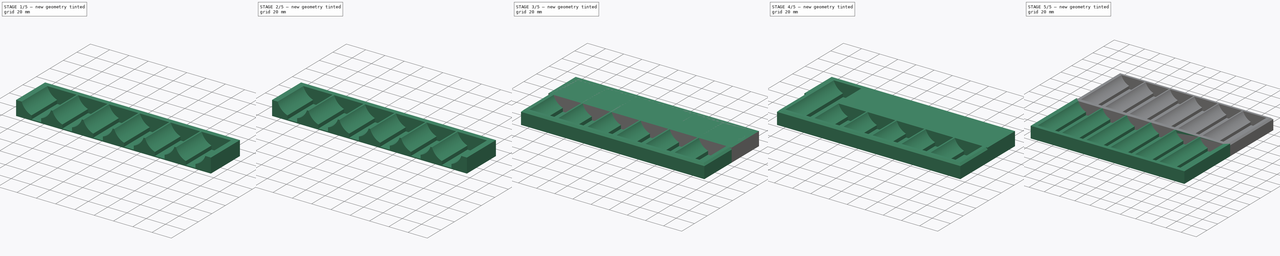
[diagram: build sequence overview — one tinted view per stage of 5, left to right]
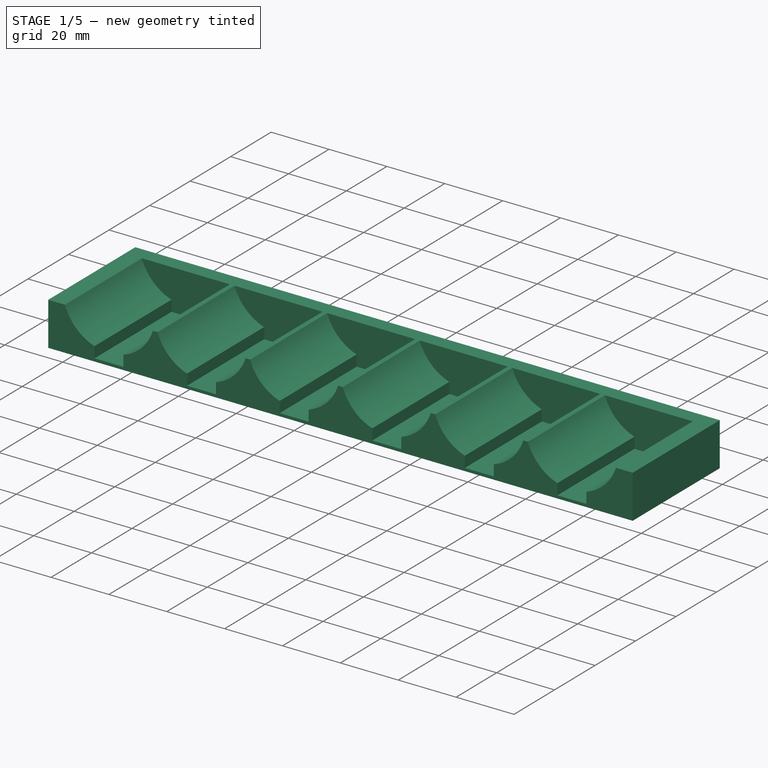
[diagram: stage 1 of 5 — iso view after this stage's code; geometry added in this stage tinted green]
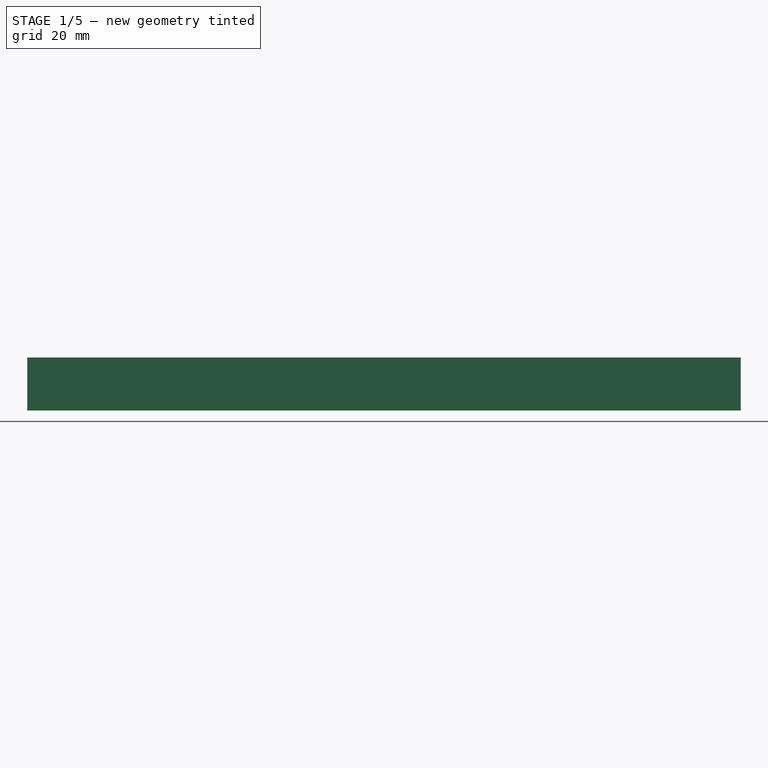
[diagram: stage 1 of 5 — front view after this stage's code; geometry added in this stage tinted green]
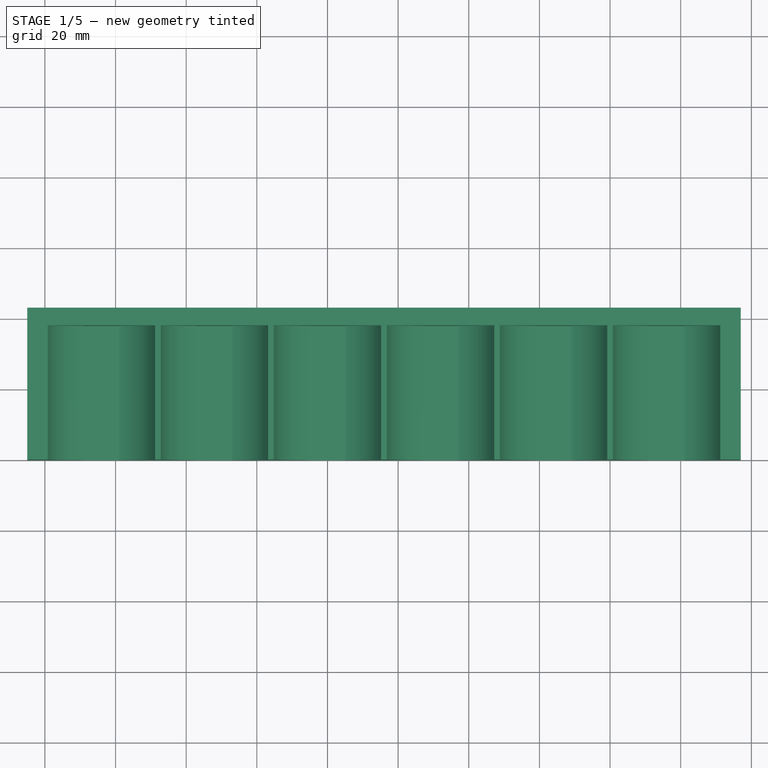
[diagram: stage 1 of 5 — top view after this stage's code; geometry added in this stage tinted green]
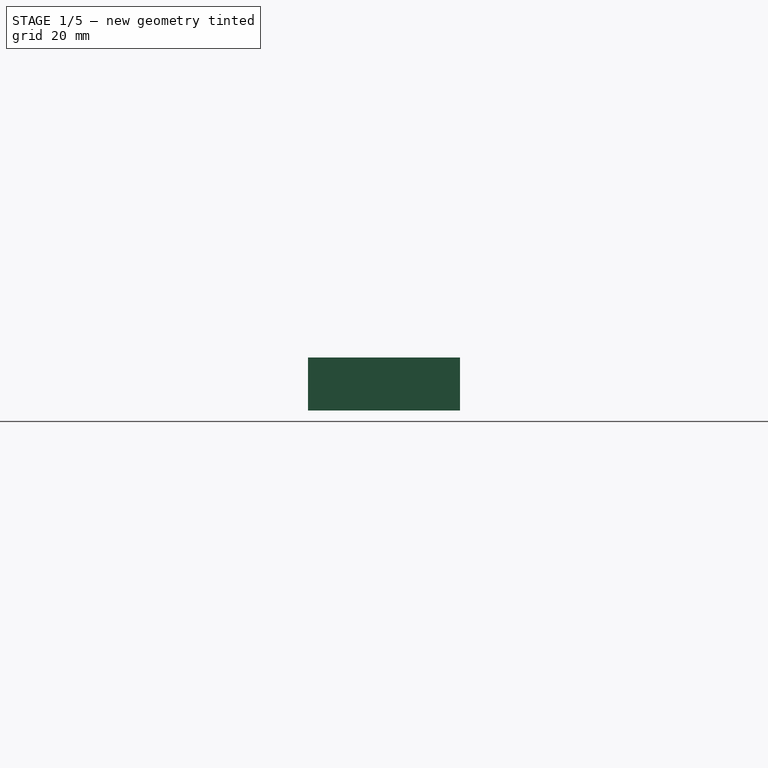
[diagram: stage 1 of 5 — right view after this stage's code; geometry added in this stage tinted green]
FCSTD DOCUMENT  (FreeCAD 0.21R33771 (Git))
Label: thread_holder
License: All rights reserved
LicenseURL: https://en.wikipedia.org/wiki/All_rights_reserved
objects: Sketcher::SketchObject×8, PartDesign::Pad×4, PartDesign::Pocket×4, PartDesign::LinearPattern×4, PartDesign::Body×4, Part::MultiFuse×2, Spreadsheet::Sheet×1, Part::Chamfer×1
note: 35 computed .brp shape members not serialized (recipe doc carries the construction recipe); baked Part::Feature solids carry a one-line shape summary decoded from their .brp

FEATURE [PartDesign::Body] Body
  Group = -> [Sketch,Pad,Sketch001,Pocket,LinearPattern]
  Origin = -> Origin
  Tip = -> LinearPattern
FEATURE [Sketcher::SketchObject] Sketch002
  FullyConstrained = true
  MapMode = 5
  Support = -> [XY_Plane001]
  expr: Constraints[8] = Spreadsheet.base_width
  sketch-geometry (4):
    g0: LineSegment StartX=-5 StartY=0 StartZ=0 EndX=197 EndY=0 EndZ=0
    g1: LineSegment StartX=197 StartY=0 StartZ=0 EndX=197 EndY=43 EndZ=0
    g2: LineSegment StartX=197 StartY=43 StartZ=0 EndX=-5 EndY=43 EndZ=0
    g3: LineSegment StartX=-5 StartY=43 StartZ=0 EndX=-5 EndY=0 EndZ=0
  constraints (12):
    c: Coincident(g0,g1)
    c: Coincident(g1,g2)
    c: Coincident(g2,g3)
    c: Coincident(g3,g0)
    c: Horizontal(g0)
    c: Horizontal(g2)
    c: Vertical(g1)
    c: Vertical(g3)
    c: DistanceX(g0,g0) = 202
    c: DistanceY(g1,g1) = 43
    c: Horizontal(g0,g-1)
    c: DistanceX(g0,g-1) = 5
FEATURE [PartDesign::Pad] Pad001
  Direction = (0,0,1)
  Length = 15
  Length2 = 10
  Profile = -> Sketch002
  ReferenceAxis = -> Sketch002 [N_Axis]
  Type = 0
FEATURE [Sketcher::SketchObject] Sketch003
  FullyConstrained = true
  MapMode = 5
  Placement = pos=(0,0,0) rot=(1,0,0;1.5708rad)
  Support = -> [Pad001]
  sketch-geometry (4):
    g0: ArcOfCircle CenterX=16 CenterY=20 CenterZ=0 NormalX=0 NormalY=0 NormalZ=1 AngleXU=0 Radius=16 StartAngle=5.03021 EndAngle=10.6778
    g1: LineSegment StartX=11 StartY=4.80132 StartZ=0 EndX=11 EndY=1 EndZ=0
    g2: LineSegment StartX=11 StartY=1 StartZ=0 EndX=21 EndY=1 EndZ=0
    g3: LineSegment StartX=21 StartY=1 StartZ=0 EndX=21 EndY=4.80132 EndZ=0
  constraints (13):
    c: Coincident(g1,g0)
    c: Coincident(g2,g1)
    c: Horizontal(g2)
    c: Coincident(g3,g2)
    c: Coincident(g3,g0)
    c: DistanceX(g-1,g0) = 16
    c: Radius(g0) = 16
    c: DistanceY(g-1,g0) = 20
    c: Vertical(g1)
    c: Vertical(g3)
    c: Horizontal(g0,g0)
    c: DistanceX(g2,g2) = 10
    c: DistanceY(g-1,g1) = 1
FEATURE [PartDesign::Pocket] Pocket001
  BaseFeature = -> Pad001
  Direction = (0,1,-2e-16)
  Length = 38
  Length2 = 5
  Profile = -> Sketch003
  ReferenceAxis = -> Sketch003 [N_Axis]
  Type = 0
FEATURE [PartDesign::LinearPattern] LinearPattern001
  BaseFeature = -> Pocket001
  Direction = -> Sketch003 [H_Axis]
  Length = 160
  Occurrences = 6
  Originals = -> [Pocket001]
  expr: Length = Spreadsheet.base_width - 32 - 10
  expr: Occurrences = Spreadsheet.number_of_columns
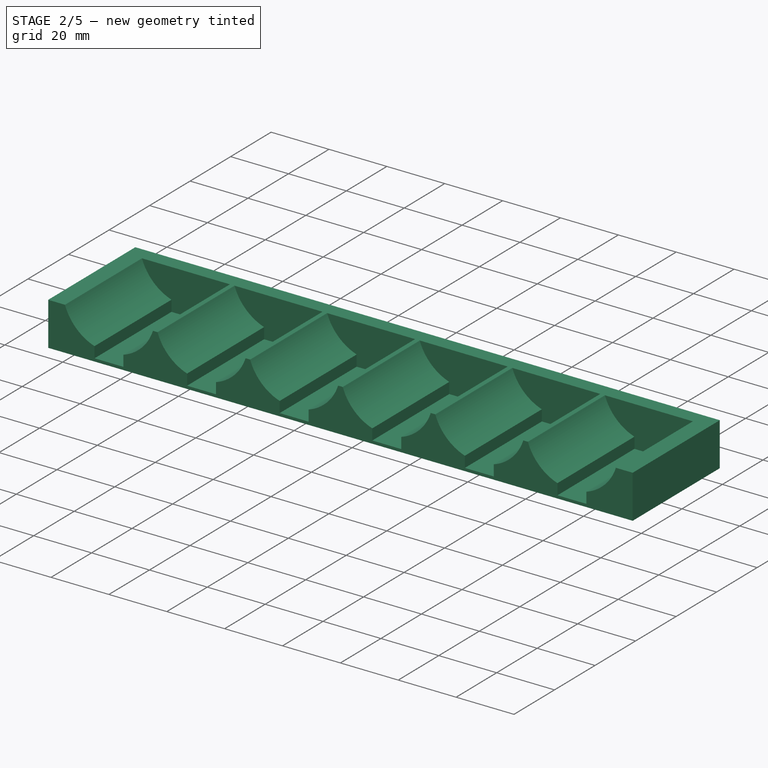
[diagram: stage 2 of 5 — iso view after this stage's code; geometry added in this stage tinted green]
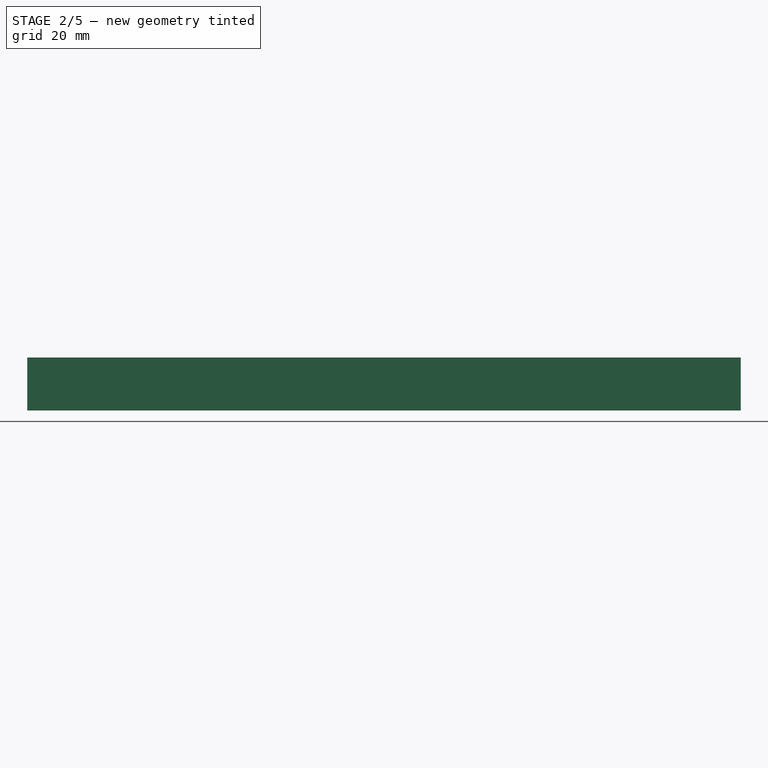
[diagram: stage 2 of 5 — front view after this stage's code; geometry added in this stage tinted green]
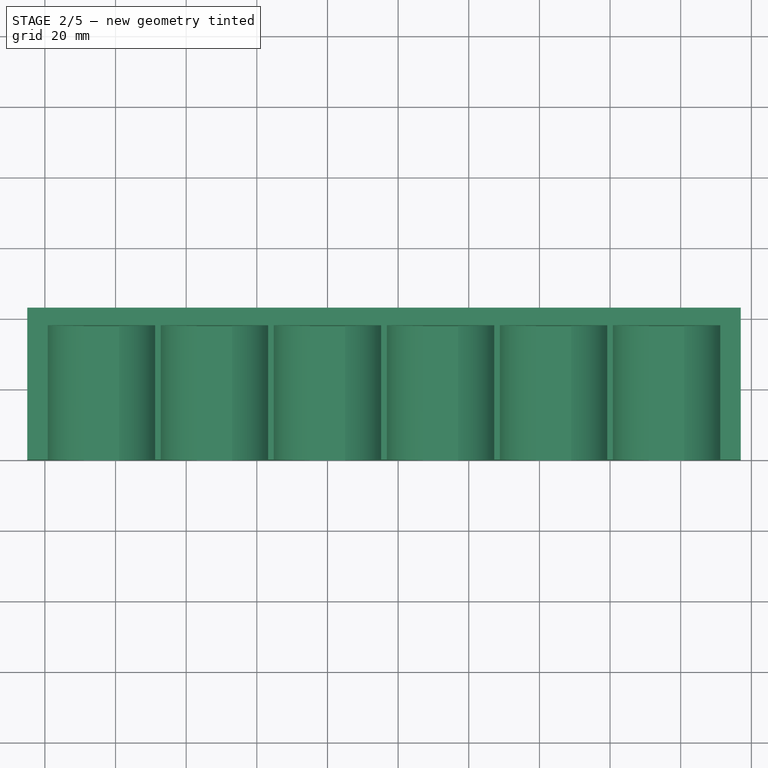
[diagram: stage 2 of 5 — top view after this stage's code; geometry added in this stage tinted green]
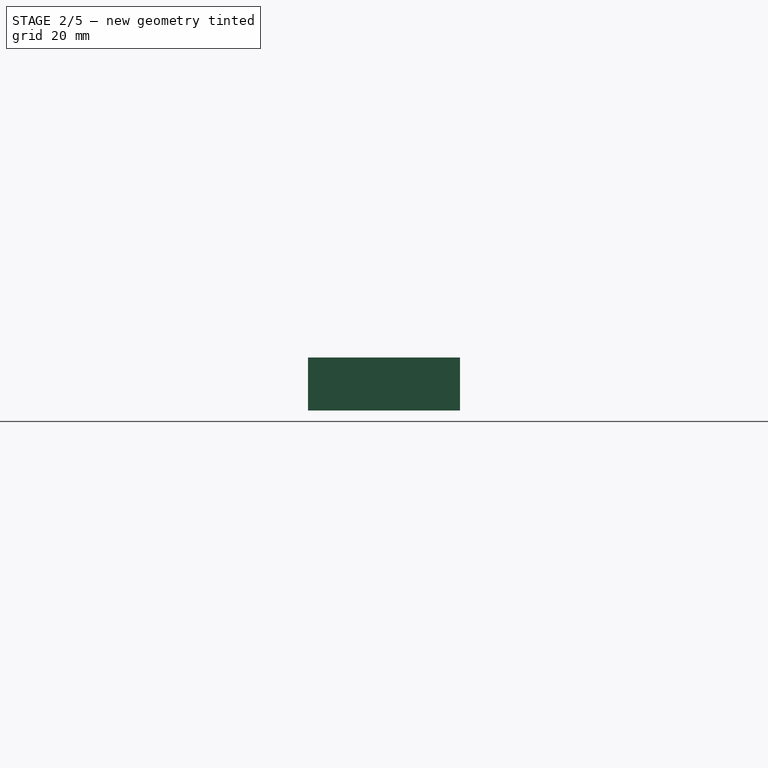
[diagram: stage 2 of 5 — right view after this stage's code; geometry added in this stage tinted green]
FEATURE [Sketcher::SketchObject] Sketch
  FullyConstrained = true
  MapMode = 5
  Support = -> [XY_Plane]
  expr: Constraints[8] = Spreadsheet.base_width
  sketch-geometry (4):
    g0: LineSegment StartX=-5 StartY=0 StartZ=0 EndX=197 EndY=0 EndZ=0
    g1: LineSegment StartX=197 StartY=0 StartZ=0 EndX=197 EndY=43 EndZ=0
    g2: LineSegment StartX=197 StartY=43 StartZ=0 EndX=-5 EndY=43 EndZ=0
    g3: LineSegment StartX=-5 StartY=43 StartZ=0 EndX=-5 EndY=0 EndZ=0
  constraints (12):
    c: Coincident(g0,g1)
    c: Coincident(g1,g2)
    c: Coincident(g2,g3)
    c: Coincident(g3,g0)
    c: Horizontal(g0)
    c: Horizontal(g2)
    c: Vertical(g1)
    c: Vertical(g3)
    c: DistanceX(g0,g0) = 202
    c: DistanceY(g1,g1) = 43
    c: Horizontal(g0,g-1)
    c: DistanceX(g0,g-1) = 5
FEATURE [PartDesign::Pad] Pad
  Direction = (0,0,1)
  Length = 15
  Length2 = 10
  Profile = -> Sketch
  ReferenceAxis = -> Sketch [N_Axis]
  Type = 0
FEATURE [Sketcher::SketchObject] Sketch001
  FullyConstrained = true
  MapMode = 5
  Placement = pos=(0,0,0) rot=(1,0,0;1.5708rad)
  Support = -> [Pad]
  sketch-geometry (4):
    g0: ArcOfCircle CenterX=16 CenterY=20 CenterZ=0 NormalX=0 NormalY=0 NormalZ=1 AngleXU=0 Radius=16 StartAngle=5.03021 EndAngle=10.6778
    g1: LineSegment StartX=11 StartY=4.80132 StartZ=0 EndX=11 EndY=1 EndZ=0
    g2: LineSegment StartX=11 StartY=1 StartZ=0 EndX=21 EndY=1 EndZ=0
    g3: LineSegment StartX=21 StartY=1 StartZ=0 EndX=21 EndY=4.80132 EndZ=0
  constraints (13):
    c: Coincident(g1,g0)
    c: Coincident(g2,g1)
    c: Horizontal(g2)
    c: Coincident(g3,g2)
    c: Coincident(g3,g0)
    c: DistanceX(g-1,g0) = 16
    c: Radius(g0) = 16
    c: DistanceY(g-1,g0) = 20
    c: Vertical(g1)
    c: Vertical(g3)
    c: Horizontal(g0,g0)
    c: DistanceX(g2,g2) = 10
    c: DistanceY(g-1,g1) = 1
FEATURE [PartDesign::Pocket] Pocket
  BaseFeature = -> Pad
  Direction = (0,1,-2e-16)
  Length = 38
  Length2 = 5
  Profile = -> Sketch001
  ReferenceAxis = -> Sketch001 [N_Axis]
  Type = 0
FEATURE [Spreadsheet::Sheet] Spreadsheet
  cells = A2='number_of_columns; B2(number_of_columns)=6; A12='base_width; B12(base_width)==number_of_columns * 32 + 10
FEATURE [PartDesign::LinearPattern] LinearPattern
  BaseFeature = -> Pocket
  Direction = -> Sketch001 [H_Axis]
  Length = 160
  Occurrences = 6
  Originals = -> [Pocket]
  expr: Length = Spreadsheet.base_width - 32 - 10
  expr: Occurrences = Spreadsheet.number_of_columns
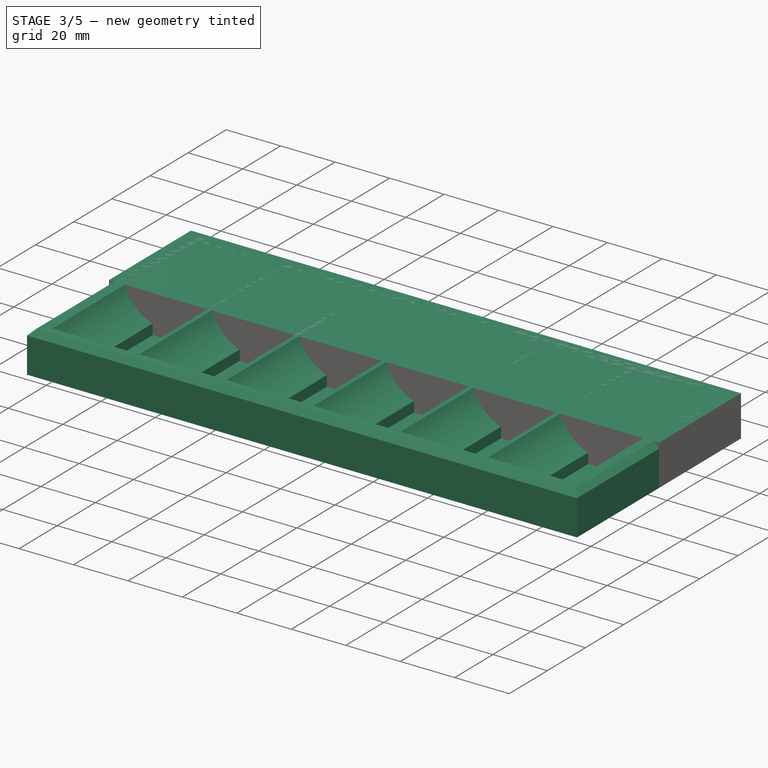
[diagram: stage 3 of 5 — iso view after this stage's code; geometry added in this stage tinted green]
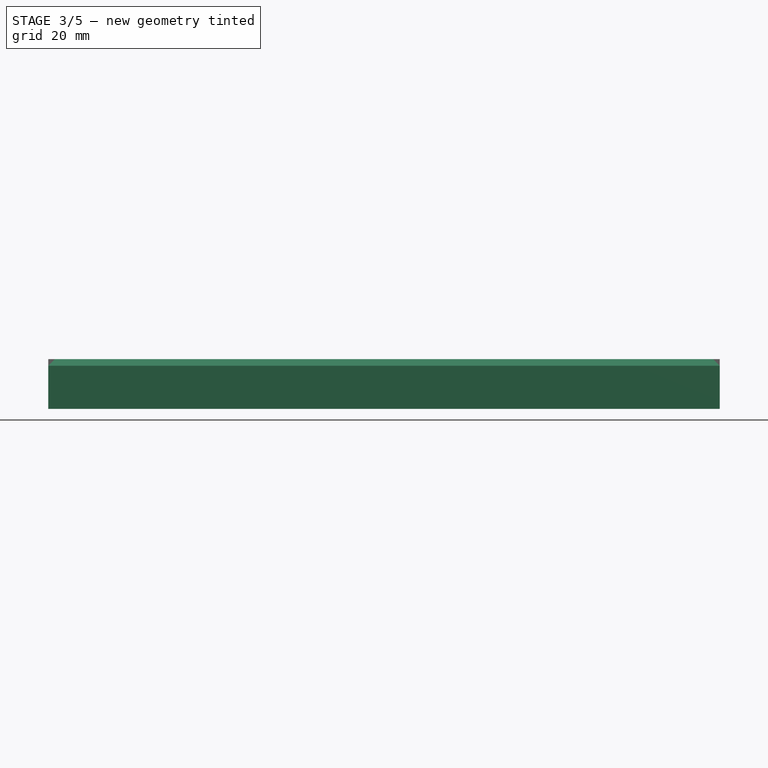
[diagram: stage 3 of 5 — front view after this stage's code; geometry added in this stage tinted green]
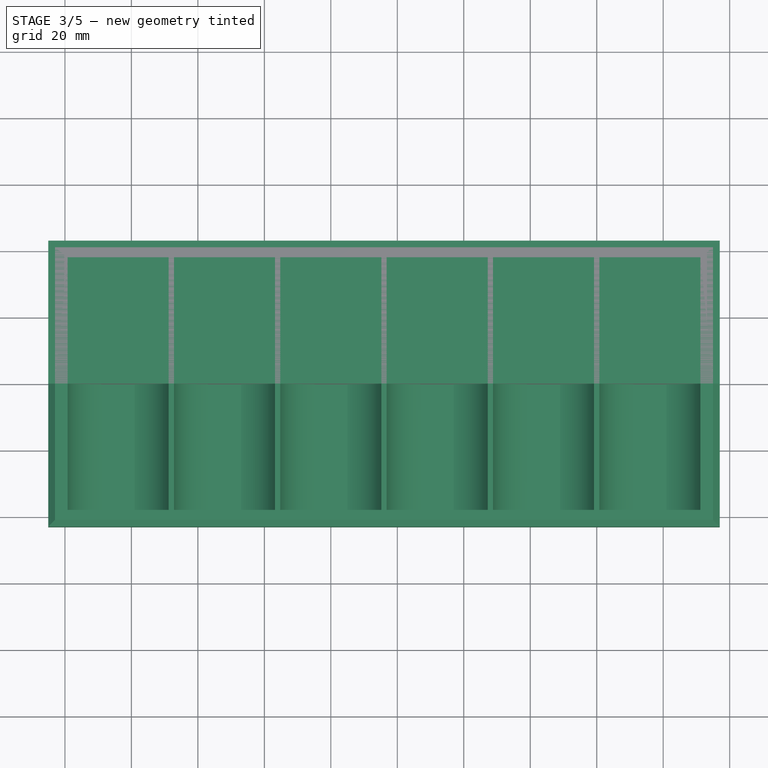
[diagram: stage 3 of 5 — top view after this stage's code; geometry added in this stage tinted green]
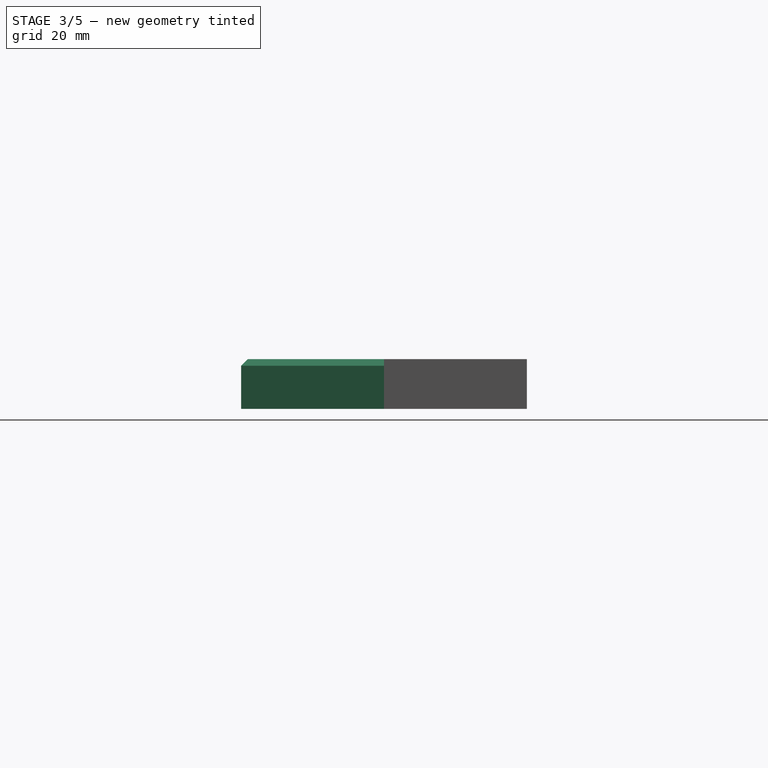
[diagram: stage 3 of 5 — right view after this stage's code; geometry added in this stage tinted green]
FEATURE [PartDesign::Body] Body001
  Group = -> [Sketch002,Pad001,Sketch003,Pocket001,LinearPattern001]
  Origin = -> Origin001
  Placement = pos=(192,0,0) rot=(0,0,1;3.14159rad)
  Tip = -> LinearPattern001
  expr: .Placement.Base.x = Spreadsheet.base_width - 10
FEATURE [Part::MultiFuse] Fusion
  Shapes = -> [Body001,Body]
FEATURE [PartDesign::Body] Body002
  Group = -> [Sketch004,Pad002,Sketch005,Pocket002,LinearPattern002]
  Origin = -> Origin002
  Tip = -> LinearPattern002
FEATURE [Sketcher::SketchObject] Sketch006
  FullyConstrained = true
  MapMode = 5
  Support = -> [XY_Plane003]
  expr: Constraints[8] = Spreadsheet.base_width
  sketch-geometry (4):
    g0: LineSegment StartX=-5 StartY=0 StartZ=0 EndX=197 EndY=0 EndZ=0
    g1: LineSegment StartX=197 StartY=0 StartZ=0 EndX=197 EndY=43 EndZ=0
    g2: LineSegment StartX=197 StartY=43 StartZ=0 EndX=-5 EndY=43 EndZ=0
    g3: LineSegment StartX=-5 StartY=43 StartZ=0 EndX=-5 EndY=0 EndZ=0
  constraints (12):
    c: Coincident(g0,g1)
    c: Coincident(g1,g2)
    c: Coincident(g2,g3)
    c: Coincident(g3,g0)
    c: Horizontal(g0)
    c: Horizontal(g2)
    c: Vertical(g1)
    c: Vertical(g3)
    c: DistanceX(g0,g0) = 202
    c: DistanceY(g1,g1) = 43
    c: Horizontal(g0,g-1)
    c: DistanceX(g0,g-1) = 5
FEATURE [PartDesign::Pad] Pad003
  Direction = (0,0,1)
  Length = 15
  Length2 = 10
  Profile = -> Sketch006
  ReferenceAxis = -> Sketch006 [N_Axis]
  Type = 0
FEATURE [Part::Chamfer] Chamfer
  Base = -> Fusion
  Edges = 6 edges r=2: [Edge10,Edge12,Edge14,Edge16,Edge18,Edge19]
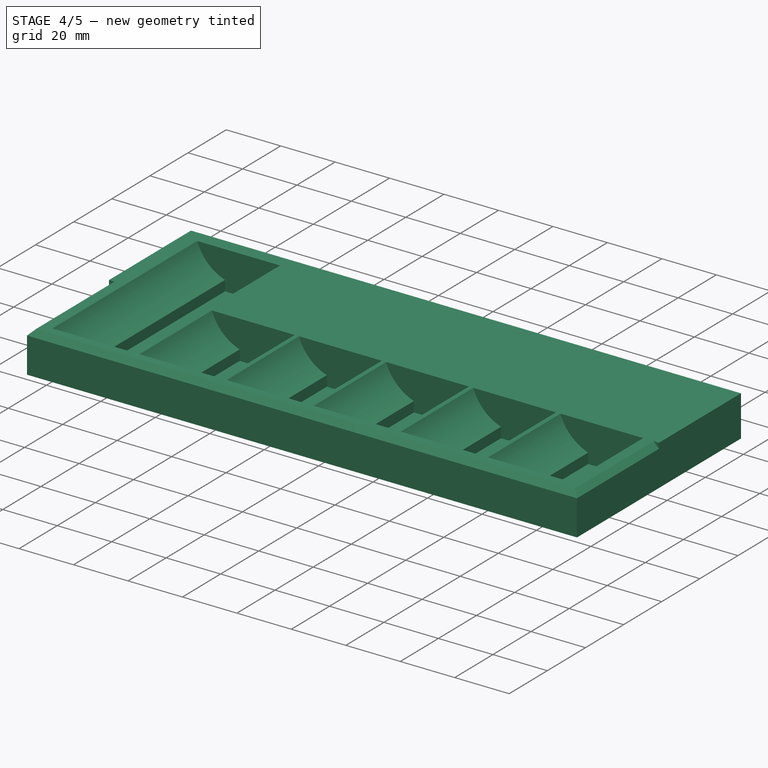
[diagram: stage 4 of 5 — iso view after this stage's code; geometry added in this stage tinted green]
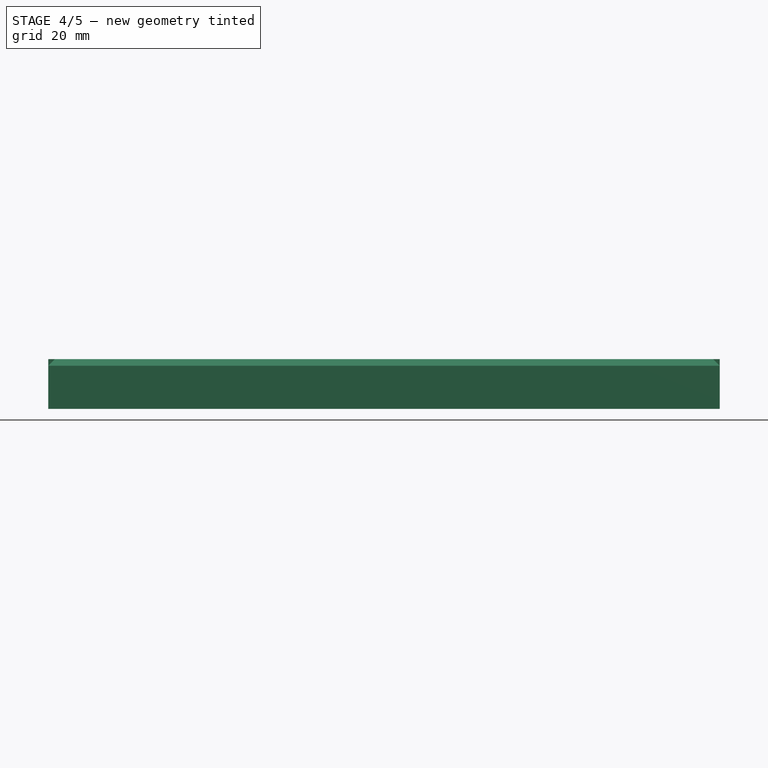
[diagram: stage 4 of 5 — front view after this stage's code; geometry added in this stage tinted green]
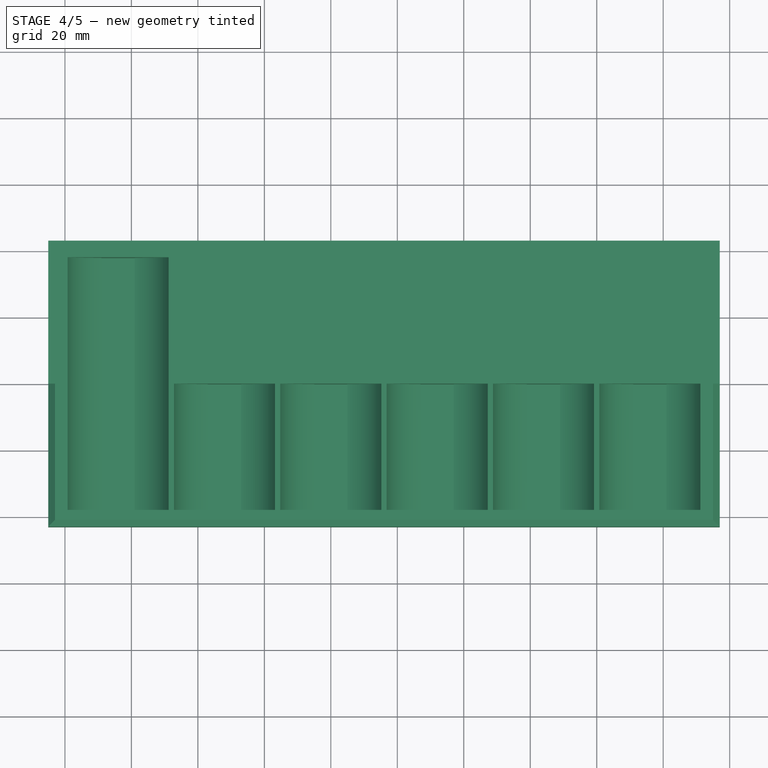
[diagram: stage 4 of 5 — top view after this stage's code; geometry added in this stage tinted green]
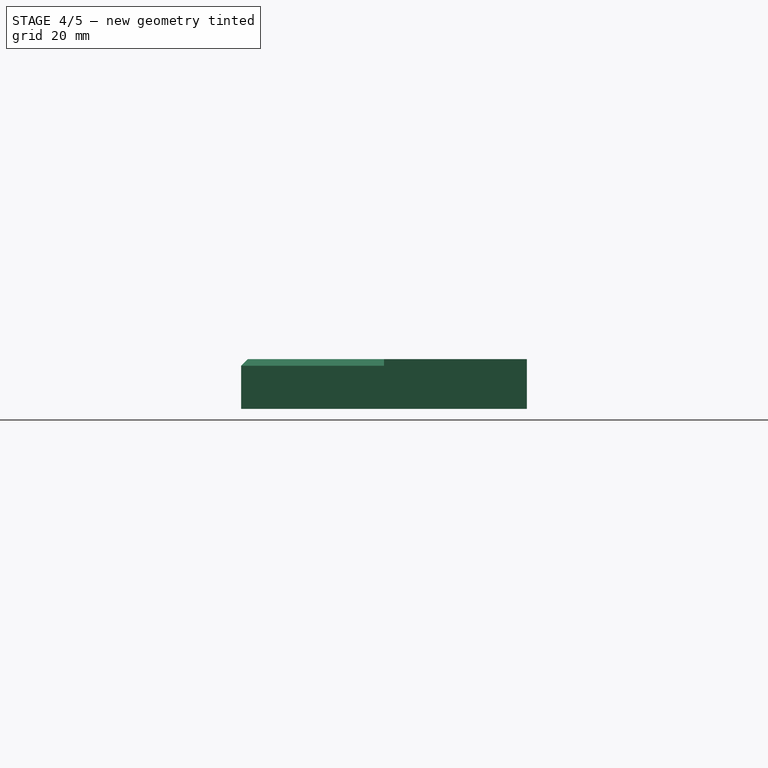
[diagram: stage 4 of 5 — right view after this stage's code; geometry added in this stage tinted green]
FEATURE [Sketcher::SketchObject] Sketch004
  FullyConstrained = true
  MapMode = 5
  Support = -> [XY_Plane002]
  expr: Constraints[8] = Spreadsheet.base_width
  sketch-geometry (4):
    g0: LineSegment StartX=-5 StartY=0 StartZ=0 EndX=197 EndY=0 EndZ=0
    g1: LineSegment StartX=197 StartY=0 StartZ=0 EndX=197 EndY=43 EndZ=0
    g2: LineSegment StartX=197 StartY=43 StartZ=0 EndX=-5 EndY=43 EndZ=0
    g3: LineSegment StartX=-5 StartY=43 StartZ=0 EndX=-5 EndY=0 EndZ=0
  constraints (12):
    c: Coincident(g0,g1)
    c: Coincident(g1,g2)
    c: Coincident(g2,g3)
    c: Coincident(g3,g0)
    c: Horizontal(g0)
    c: Horizontal(g2)
    c: Vertical(g1)
    c: Vertical(g3)
    c: DistanceX(g0,g0) = 202
    c: DistanceY(g1,g1) = 43
    c: Horizontal(g0,g-1)
    c: DistanceX(g0,g-1) = 5
FEATURE [PartDesign::Pad] Pad002
  Direction = (0,0,1)
  Length = 15
  Length2 = 10
  Profile = -> Sketch004
  ReferenceAxis = -> Sketch004 [N_Axis]
  Type = 0
FEATURE [Sketcher::SketchObject] Sketch005
  FullyConstrained = true
  MapMode = 5
  Placement = pos=(0,0,0) rot=(1,0,0;1.5708rad)
  Support = -> [Pad002]
  sketch-geometry (4):
    g0: ArcOfCircle CenterX=16 CenterY=20 CenterZ=0 NormalX=0 NormalY=0 NormalZ=1 AngleXU=0 Radius=16 StartAngle=5.03021 EndAngle=10.6778
    g1: LineSegment StartX=11 StartY=4.80132 StartZ=0 EndX=11 EndY=1 EndZ=0
    g2: LineSegment StartX=11 StartY=1 StartZ=0 EndX=21 EndY=1 EndZ=0
    g3: LineSegment StartX=21 StartY=1 StartZ=0 EndX=21 EndY=4.80132 EndZ=0
  constraints (13):
    c: Coincident(g1,g0)
    c: Coincident(g2,g1)
    c: Horizontal(g2)
    c: Coincident(g3,g2)
    c: Coincident(g3,g0)
    c: DistanceX(g-1,g0) = 16
    c: Radius(g0) = 16
    c: DistanceY(g-1,g0) = 20
    c: Vertical(g1)
    c: Vertical(g3)
    c: Horizontal(g0,g0)
    c: DistanceX(g2,g2) = 10
    c: DistanceY(g-1,g1) = 1
FEATURE [PartDesign::Pocket] Pocket002
  BaseFeature = -> Pad002
  Direction = (0,1,-2e-16)
  Length = 38
  Length2 = 5
  Profile = -> Sketch005
  ReferenceAxis = -> Sketch005 [N_Axis]
  Type = 0
FEATURE [Sketcher::SketchObject] Sketch007
  FullyConstrained = true
  MapMode = 5
  Placement = pos=(0,0,0) rot=(1,0,0;1.5708rad)
  Support = -> [Pad003]
  sketch-geometry (4):
    g0: ArcOfCircle CenterX=16 CenterY=20 CenterZ=0 NormalX=0 NormalY=0 NormalZ=1 AngleXU=0 Radius=16 StartAngle=5.03021 EndAngle=10.6778
    g1: LineSegment StartX=11 StartY=4.80132 StartZ=0 EndX=11 EndY=1 EndZ=0
    g2: LineSegment StartX=11 StartY=1 StartZ=0 EndX=21 EndY=1 EndZ=0
    g3: LineSegment StartX=21 StartY=1 StartZ=0 EndX=21 EndY=4.80132 EndZ=0
  constraints (13):
    c: Coincident(g1,g0)
    c: Coincident(g2,g1)
    c: Horizontal(g2)
    c: Coincident(g3,g2)
    c: Coincident(g3,g0)
    c: DistanceX(g-1,g0) = 16
    c: Radius(g0) = 16
    c: DistanceY(g-1,g0) = 20
    c: Vertical(g1)
    c: Vertical(g3)
    c: Horizontal(g0,g0)
    c: DistanceX(g2,g2) = 10
    c: DistanceY(g-1,g1) = 1
FEATURE [PartDesign::Pocket] Pocket003
  BaseFeature = -> Pad003
  Direction = (0,1,-2e-16)
  Length = 38
  Length2 = 5
  Profile = -> Sketch007
  ReferenceAxis = -> Sketch007 [N_Axis]
  Type = 0
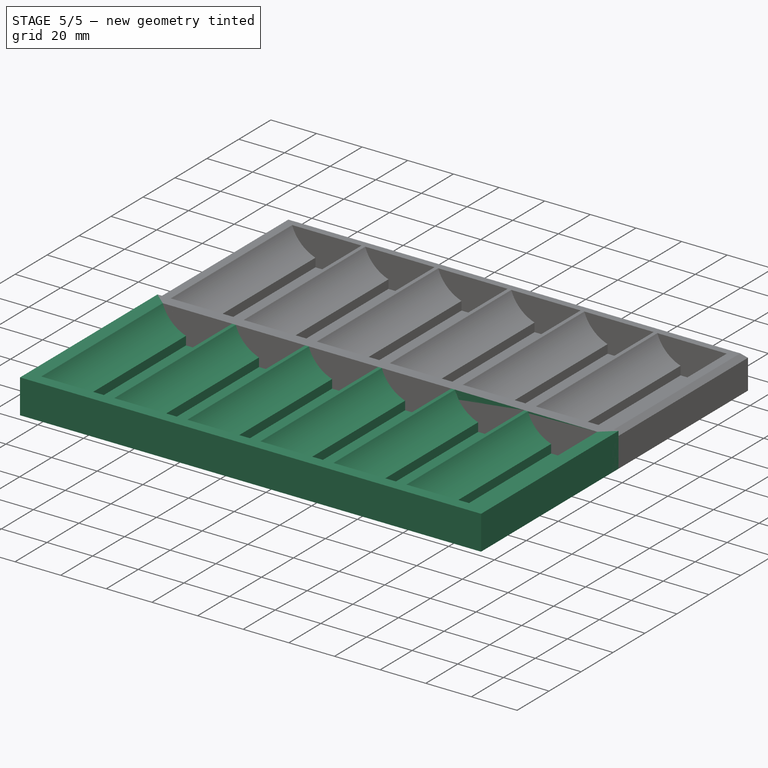
[diagram: stage 5 of 5 — iso view after this stage's code; geometry added in this stage tinted green]
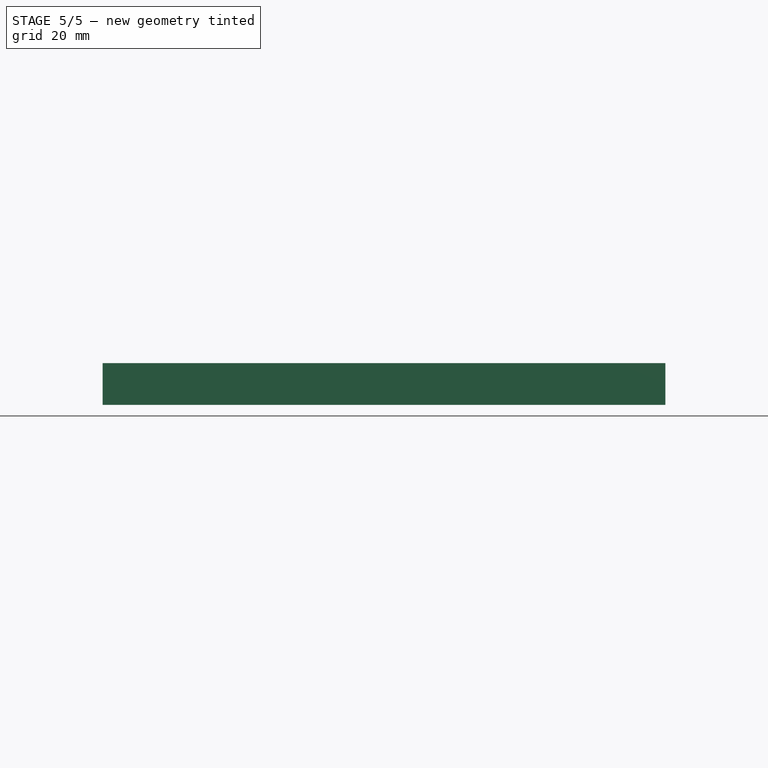
[diagram: stage 5 of 5 — front view after this stage's code; geometry added in this stage tinted green]
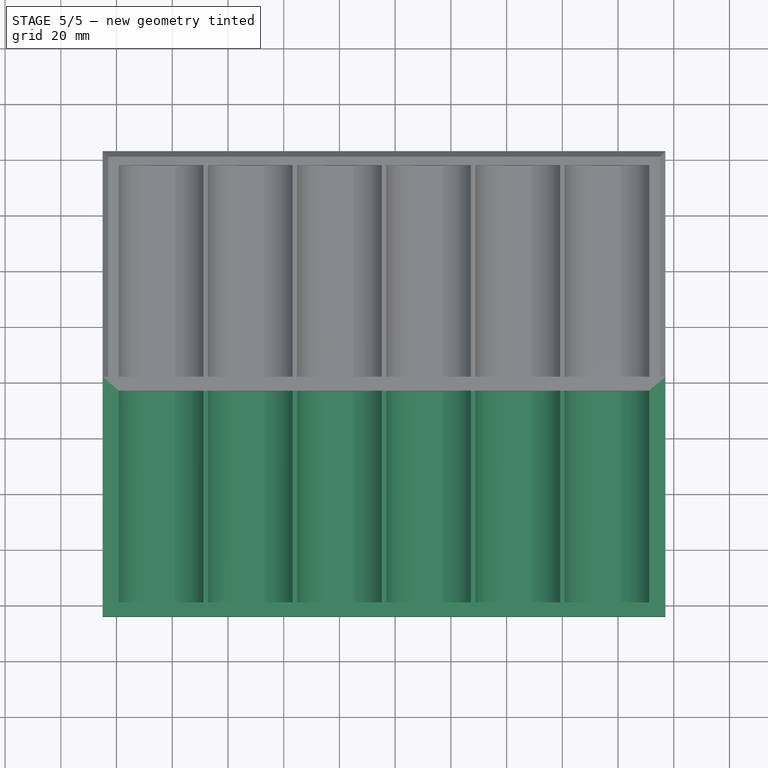
[diagram: stage 5 of 5 — top view after this stage's code; geometry added in this stage tinted green]
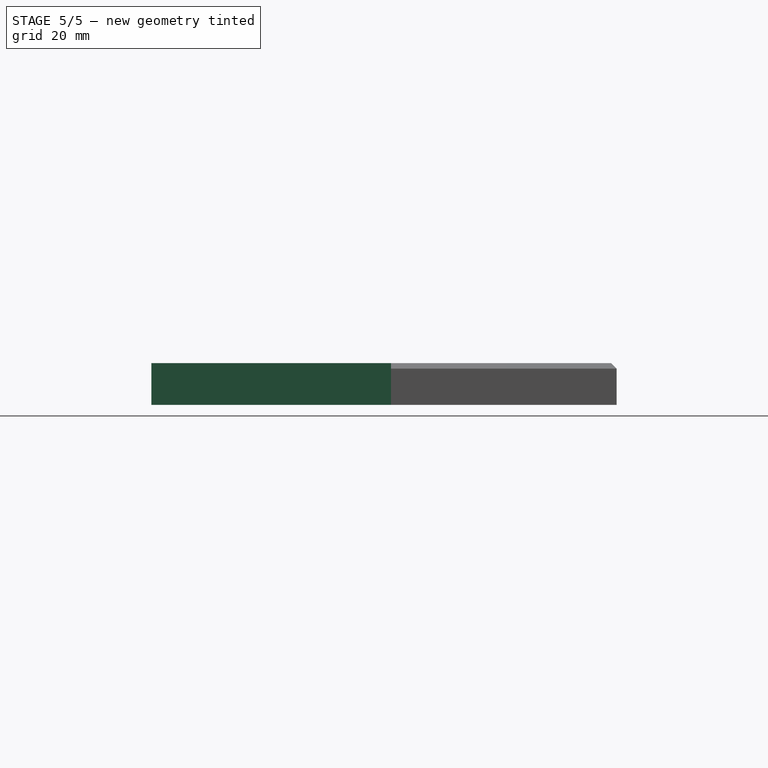
[diagram: stage 5 of 5 — right view after this stage's code; geometry added in this stage tinted green]
FEATURE [PartDesign::LinearPattern] LinearPattern002
  BaseFeature = -> Pocket002
  Direction = -> Sketch005 [H_Axis]
  Length = 160
  Occurrences = 6
  Originals = -> [Pocket002]
  expr: Length = Spreadsheet.base_width - 32 - 10
  expr: Occurrences = Spreadsheet.number_of_columns
FEATURE [PartDesign::LinearPattern] LinearPattern003
  BaseFeature = -> Pocket003
  Direction = -> Sketch007 [H_Axis]
  Length = 160
  Occurrences = 6
  Originals = -> [Pocket003]
  expr: Length = Spreadsheet.base_width - 32 - 10
  expr: Occurrences = Spreadsheet.number_of_columns
FEATURE [PartDesign::Body] Body003
  Group = -> [Sketch006,Pad003,Sketch007,Pocket003,LinearPattern003]
  Origin = -> Origin003
  Placement = pos=(192,0,0) rot=(0,0,1;3.14159rad)
  Tip = -> LinearPattern003
  expr: .Placement.Base.x = Spreadsheet.base_width - 10
FEATURE [Part::MultiFuse] Fusion001
  Placement = pos=(0,-81,0) rot=(0,0,1;0rad)
  Shapes = -> [Body003,Body002]
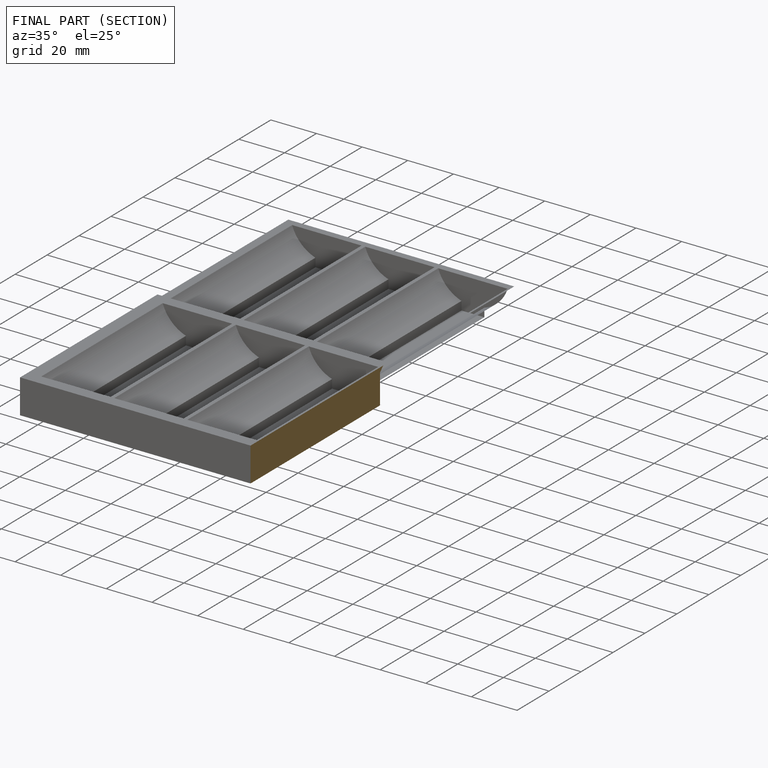
[diagram: finished part — half-section view (interior)]
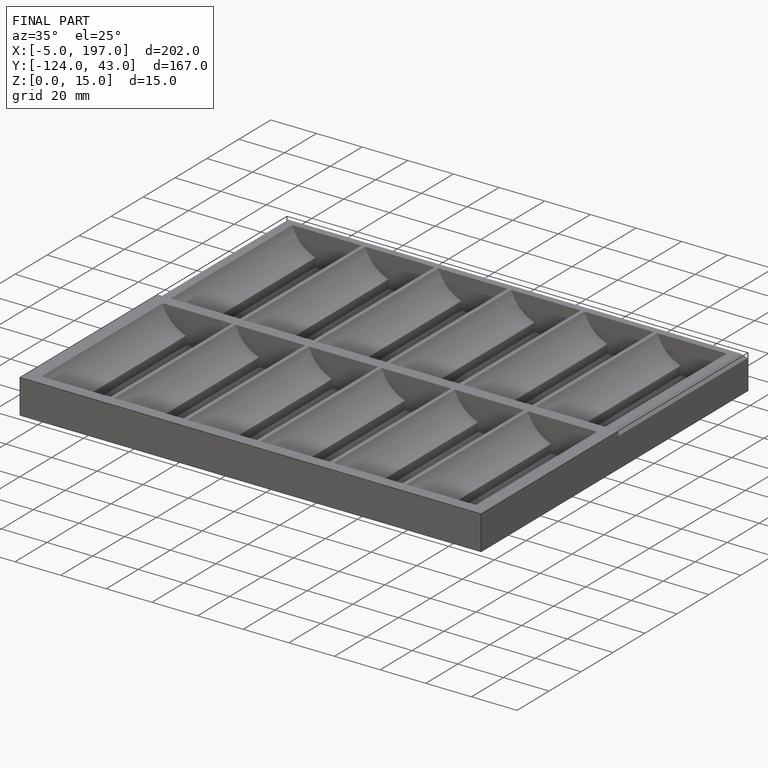
[diagram: finished part — iso view with bounding-box wireframe]
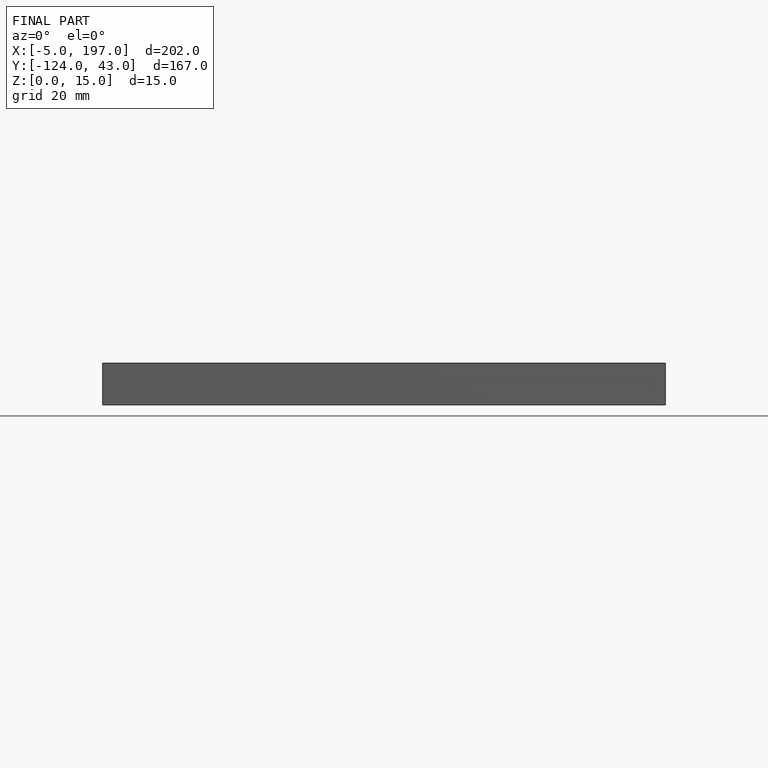
[diagram: finished part — front view with bounding-box wireframe]
